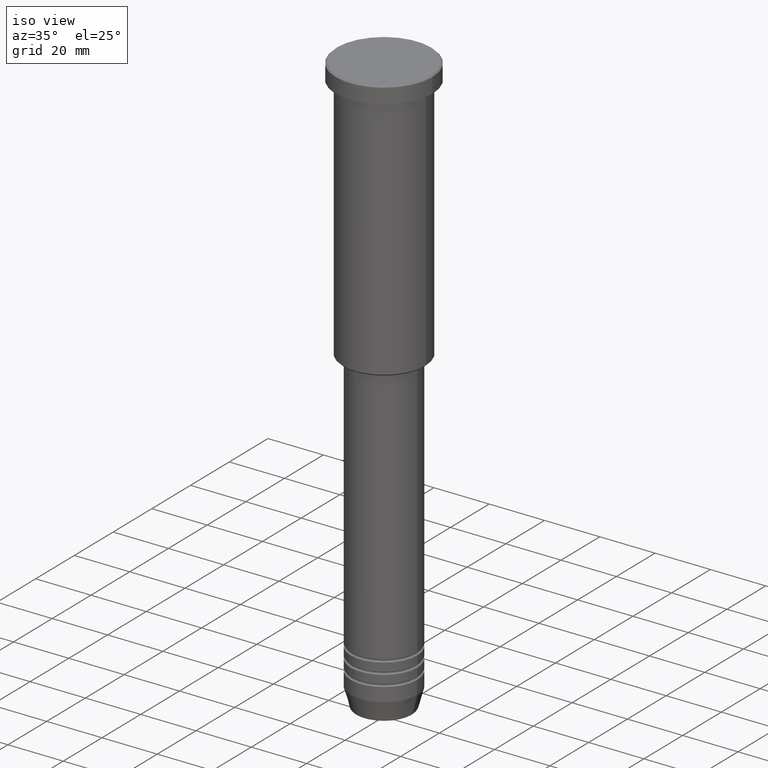
[diagram: clean part render]
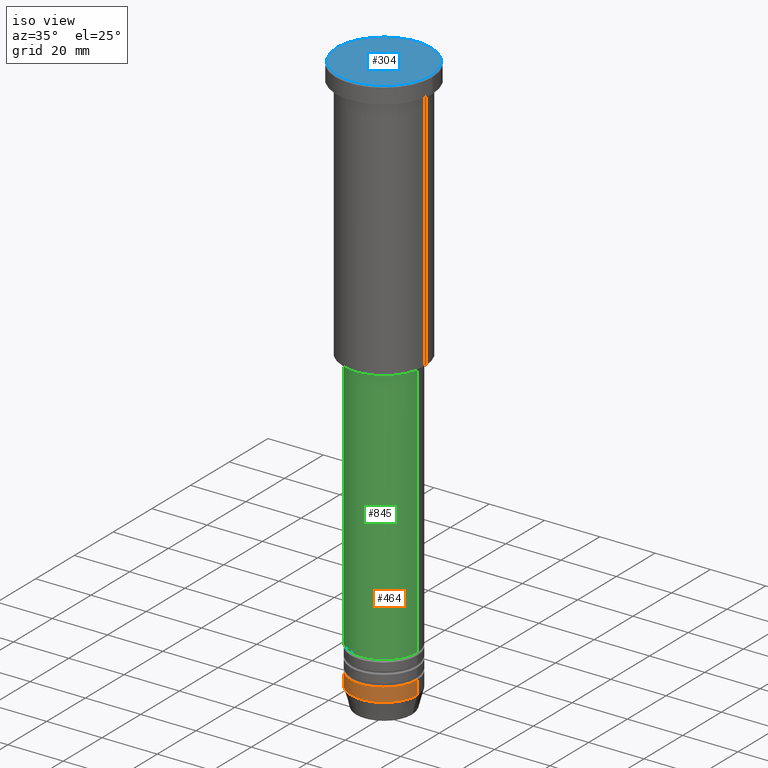
[diagram: same view with three faces highlighted in distinct colors, each labeled with its STEP entity id]
A machine part, iso view with three faces highlighted in distinct colors.
Their STEP definitions:

[orange] entity #464 — the highlighted cylindrical surface (partial cylindrical patch) has radius 12 mm, axis along (-0, -0, 1).
#65 = DIRECTION ( 'NONE',  ( 1.000000000000000000, 0.000000000000000000, 0.000000000000000000 ) ) ;
#141 = LINE ( 'NONE', #768, #513 ) ;
#148 = AXIS2_PLACEMENT_3D ( 'NONE', #296, #749, #289 ) ;
#204 = VERTEX_POINT ( 'NONE', #967 ) ;
#214 = EDGE_CURVE ( 'NONE', #204, #773, #141, .T. ) ;
#258 = EDGE_CURVE ( 'NONE', #769, #412, #1045, .T. ) ;
#287 = VECTOR ( 'NONE', #864, 1000.000000000000000 ) ;
#289 = DIRECTION ( 'NONE',  ( 1.000000000000000000, 0.000000000000000000, 0.000000000000000000 ) ) ;
#292 = CIRCLE ( 'NONE', #575, 12.00000000000000000 ) ;
#296 = CARTESIAN_POINT ( 'NONE',  ( 0.000000000000000000, 0.000000000000000000, -204.0000000000000284 ) ) ;
#305 = CARTESIAN_POINT ( 'NONE',  ( 0.000000000000000000, 0.000000000000000000, -199.0000000000000284 ) ) ;
#308 = CYLINDRICAL_SURFACE ( 'NONE', #439, 12.00000000000000000 ) ;
#314 = ORIENTED_EDGE ( 'NONE', *, *, #1177, .T. ) ;
#344 = CARTESIAN_POINT ( 'NONE',  ( 12.00000000000000000, 0.000000000000000000, -199.0000000000000284 ) ) ;
#402 = ORIENTED_EDGE ( 'NONE', *, *, #1007, .F. ) ;
#412 = VERTEX_POINT ( 'NONE', #344 ) ;
#435 = CARTESIAN_POINT ( 'NONE',  ( -12.00000000000000000, 1.469576158976823947E-15, -199.0000000000000284 ) ) ;
#439 = AXIS2_PLACEMENT_3D ( 'NONE', #673, #1037, #65 ) ;
#464 = ADVANCED_FACE ( 'NONE', ( #1121 ), #308, .T. ) ;
#503 = CARTESIAN_POINT ( 'NONE',  ( 12.00000000000000000, 0.000000000000000000, 0.000000000000000000 ) ) ;
#513 = VECTOR ( 'NONE', #781, 1000.000000000000000 ) ;
#575 = AXIS2_PLACEMENT_3D ( 'NONE', #305, #777, #851 ) ;
#576 = ORIENTED_EDGE ( 'NONE', *, *, #214, .F. ) ;
#673 = CARTESIAN_POINT ( 'NONE',  ( 0.000000000000000000, 0.000000000000000000, 0.000000000000000000 ) ) ;
#749 = DIRECTION ( 'NONE',  ( -0.000000000000000000, -0.000000000000000000, 1.000000000000000000 ) ) ;
#768 = CARTESIAN_POINT ( 'NONE',  ( -12.00000000000000000, 1.469576158976823947E-15, 0.000000000000000000 ) ) ;
#769 = VERTEX_POINT ( 'NONE', #1060 ) ;
#773 = VERTEX_POINT ( 'NONE', #435 ) ;
#777 = DIRECTION ( 'NONE',  ( -0.000000000000000000, -0.000000000000000000, 1.000000000000000000 ) ) ;
#781 = DIRECTION ( 'NONE',  ( -0.000000000000000000, -0.000000000000000000, 1.000000000000000000 ) ) ;
#851 = DIRECTION ( 'NONE',  ( 1.000000000000000000, 0.000000000000000000, 0.000000000000000000 ) ) ;
#864 = DIRECTION ( 'NONE',  ( -0.000000000000000000, -0.000000000000000000, 1.000000000000000000 ) ) ;
#894 = EDGE_LOOP ( 'NONE', ( #576, #314, #1094, #402 ) ) ;
#967 = CARTESIAN_POINT ( 'NONE',  ( -12.00000000000000000, 1.469576158976823947E-15, -204.0000000000000284 ) ) ;
#981 = CIRCLE ( 'NONE', #148, 12.00000000000000000 ) ;
#1007 = EDGE_CURVE ( 'NONE', #773, #412, #292, .T. ) ;
#1037 = DIRECTION ( 'NONE',  ( -0.000000000000000000, -0.000000000000000000, 1.000000000000000000 ) ) ;
#1045 = LINE ( 'NONE', #503, #287 ) ;
#1060 = CARTESIAN_POINT ( 'NONE',  ( 12.00000000000000000, 0.000000000000000000, -204.0000000000000284 ) ) ;
#1094 = ORIENTED_EDGE ( 'NONE', *, *, #258, .T. ) ;
#1121 = FACE_OUTER_BOUND ( 'NONE', #894, .T. ) ;
#1177 = EDGE_CURVE ( 'NONE', #204, #769, #981, .T. ) ;

[blue] entity #304 — the highlighted planar face has unit normal (0, -0, 1).
#23 = AXIS2_PLACEMENT_3D ( 'NONE', #319, #682, #397 ) ;
#55 = CARTESIAN_POINT ( 'NONE',  ( 0.000000000000000000, 0.000000000000000000, 0.000000000000000000 ) ) ;
#87 = DIRECTION ( 'NONE',  ( 0.000000000000000000, -0.000000000000000000, 1.000000000000000000 ) ) ;
#92 = CARTESIAN_POINT ( 'NONE',  ( 16.99999999999998579, 2.112515728529183278E-15, 0.000000000000000000 ) ) ;
#173 = EDGE_LOOP ( 'NONE', ( #1088, #612 ) ) ;
#269 = AXIS2_PLACEMENT_3D ( 'NONE', #349, #87, #444 ) ;
#304 = ADVANCED_FACE ( 'NONE', ( #908 ), #986, .T. ) ;
#319 = CARTESIAN_POINT ( 'NONE',  ( 0.000000000000000000, 0.000000000000000000, 0.000000000000000000 ) ) ;
#349 = CARTESIAN_POINT ( 'NONE',  ( 0.000000000000000000, 0.000000000000000000, 0.000000000000000000 ) ) ;
#369 = CARTESIAN_POINT ( 'NONE',  ( -16.99999999999998579, 0.000000000000000000, 0.000000000000000000 ) ) ;
#397 = DIRECTION ( 'NONE',  ( 1.000000000000000000, 0.000000000000000000, 0.000000000000000000 ) ) ;
#441 = EDGE_CURVE ( 'NONE', #661, #858, #532, .T. ) ;
#444 = DIRECTION ( 'NONE',  ( 1.000000000000000000, 0.000000000000000000, 0.000000000000000000 ) ) ;
#532 = CIRCLE ( 'NONE', #23, 16.99999999999998579 ) ;
#612 = ORIENTED_EDGE ( 'NONE', *, *, #441, .T. ) ;
#661 = VERTEX_POINT ( 'NONE', #92 ) ;
#682 = DIRECTION ( 'NONE',  ( -0.000000000000000000, -0.000000000000000000, 1.000000000000000000 ) ) ;
#721 = DIRECTION ( 'NONE',  ( 1.000000000000000000, 0.000000000000000000, 0.000000000000000000 ) ) ;
#821 = CIRCLE ( 'NONE', #946, 16.99999999999998579 ) ;
#858 = VERTEX_POINT ( 'NONE', #369 ) ;
#908 = FACE_OUTER_BOUND ( 'NONE', #173, .T. ) ;
#946 = AXIS2_PLACEMENT_3D ( 'NONE', #55, #1061, #721 ) ;
#986 = PLANE ( 'NONE',  #269 ) ;
#1061 = DIRECTION ( 'NONE',  ( -0.000000000000000000, -0.000000000000000000, 1.000000000000000000 ) ) ;
#1088 = ORIENTED_EDGE ( 'NONE', *, *, #1092, .T. ) ;
#1092 = EDGE_CURVE ( 'NONE', #858, #661, #821, .T. ) ;

[green] entity #845 — the highlighted cylindrical surface (partial cylindrical patch) has radius 12 mm, axis along (-0, -0, 1).
#28 = CARTESIAN_POINT ( 'NONE',  ( 12.00000000000000000, 0.000000000000000000, 0.000000000000000000 ) ) ;
#39 = ORIENTED_EDGE ( 'NONE', *, *, #187, .F. ) ;
#59 = CIRCLE ( 'NONE', #1068, 12.00000000000000000 ) ;
#73 = LINE ( 'NONE', #28, #1125 ) ;
#78 = DIRECTION ( 'NONE',  ( -0.000000000000000000, -0.000000000000000000, 1.000000000000000000 ) ) ;
#168 = VERTEX_POINT ( 'NONE', #365 ) ;
#181 = AXIS2_PLACEMENT_3D ( 'NONE', #850, #691, #218 ) ;
#187 = EDGE_CURVE ( 'NONE', #757, #956, #1146, .T. ) ;
#194 = CYLINDRICAL_SURFACE ( 'NONE', #1168, 12.00000000000000000 ) ;
#218 = DIRECTION ( 'NONE',  ( 1.000000000000000000, 0.000000000000000000, 0.000000000000000000 ) ) ;
#259 = VECTOR ( 'NONE', #78, 1000.000000000000000 ) ;
#285 = CARTESIAN_POINT ( 'NONE',  ( 0.000000000000000000, 0.000000000000000000, -189.9999999999999147 ) ) ;
#290 = DIRECTION ( 'NONE',  ( 1.000000000000000000, 0.000000000000000000, 0.000000000000000000 ) ) ;
#301 = CARTESIAN_POINT ( 'NONE',  ( 0.000000000000000000, 0.000000000000000000, 0.000000000000000000 ) ) ;
#323 = EDGE_CURVE ( 'NONE', #168, #572, #59, .T. ) ;
#365 = CARTESIAN_POINT ( 'NONE',  ( -12.00000000000000000, 1.469576158976823947E-15, -189.9999999999999147 ) ) ;
#430 = CARTESIAN_POINT ( 'NONE',  ( -12.00000000000000000, 1.469576158976823947E-15, 0.000000000000000000 ) ) ;
#541 = ORIENTED_EDGE ( 'NONE', *, *, #323, .T. ) ;
#572 = VERTEX_POINT ( 'NONE', #764 ) ;
#654 = DIRECTION ( 'NONE',  ( -0.000000000000000000, -0.000000000000000000, 1.000000000000000000 ) ) ;
#683 = ORIENTED_EDGE ( 'NONE', *, *, #1112, .F. ) ;
#691 = DIRECTION ( 'NONE',  ( -0.000000000000000000, -0.000000000000000000, 1.000000000000000000 ) ) ;
#738 = DIRECTION ( 'NONE',  ( -0.000000000000000000, -0.000000000000000000, 1.000000000000000000 ) ) ;
#757 = VERTEX_POINT ( 'NONE', #816 ) ;
#764 = CARTESIAN_POINT ( 'NONE',  ( 12.00000000000000000, 0.000000000000000000, -189.9999999999999147 ) ) ;
#816 = CARTESIAN_POINT ( 'NONE',  ( -12.00000000000000000, 1.469576158976823947E-15, -97.00000000000005684 ) ) ;
#834 = EDGE_CURVE ( 'NONE', #572, #956, #73, .T. ) ;
#835 = DIRECTION ( 'NONE',  ( 1.000000000000000000, 0.000000000000000000, 0.000000000000000000 ) ) ;
#845 = ADVANCED_FACE ( 'NONE', ( #1115 ), #194, .T. ) ;
#850 = CARTESIAN_POINT ( 'NONE',  ( 0.000000000000000000, 0.000000000000000000, -97.00000000000005684 ) ) ;
#885 = LINE ( 'NONE', #430, #259 ) ;
#935 = DIRECTION ( 'NONE',  ( -0.000000000000000000, -0.000000000000000000, 1.000000000000000000 ) ) ;
#953 = EDGE_LOOP ( 'NONE', ( #683, #541, #1072, #39 ) ) ;
#956 = VERTEX_POINT ( 'NONE', #1119 ) ;
#1068 = AXIS2_PLACEMENT_3D ( 'NONE', #285, #738, #290 ) ;
#1072 = ORIENTED_EDGE ( 'NONE', *, *, #834, .T. ) ;
#1112 = EDGE_CURVE ( 'NONE', #168, #757, #885, .T. ) ;
#1115 = FACE_OUTER_BOUND ( 'NONE', #953, .T. ) ;
#1119 = CARTESIAN_POINT ( 'NONE',  ( 12.00000000000000000, 0.000000000000000000, -97.00000000000005684 ) ) ;
#1125 = VECTOR ( 'NONE', #654, 1000.000000000000000 ) ;
#1146 = CIRCLE ( 'NONE', #181, 12.00000000000000000 ) ;
#1168 = AXIS2_PLACEMENT_3D ( 'NONE', #301, #935, #835 ) ;